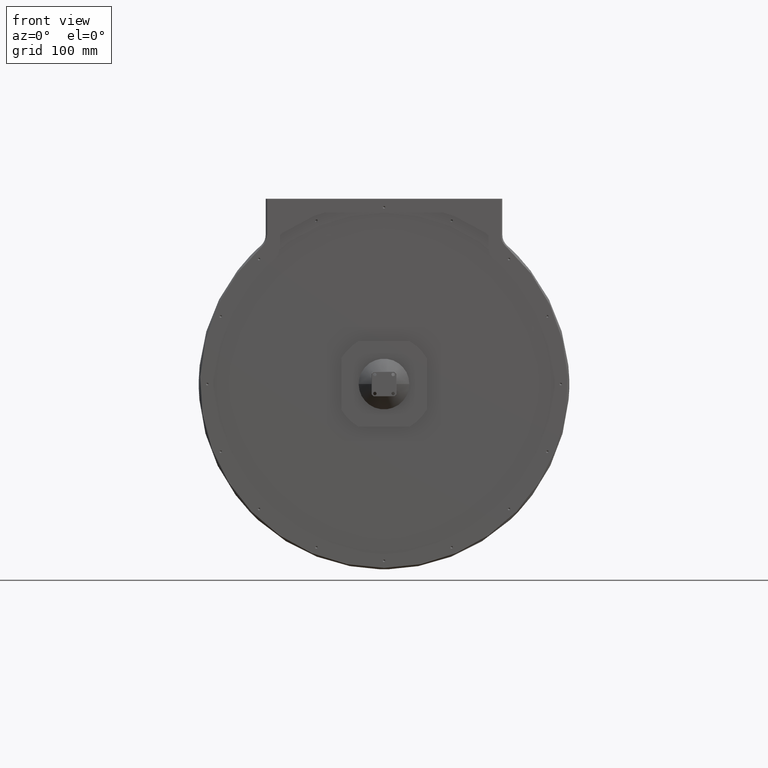
[diagram: clean part render]
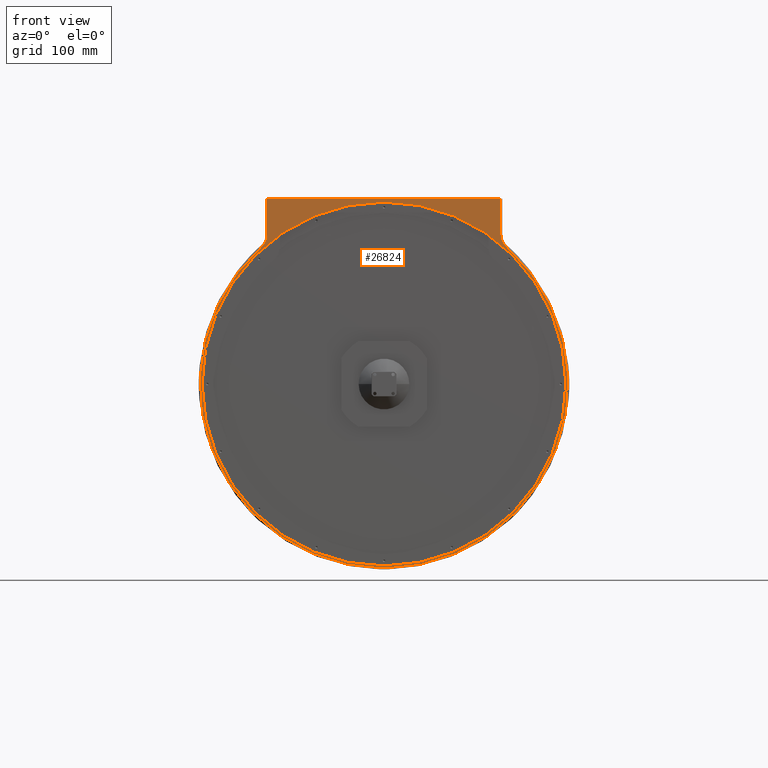
[diagram: same view with one face highlighted and labeled with its STEP entity id]
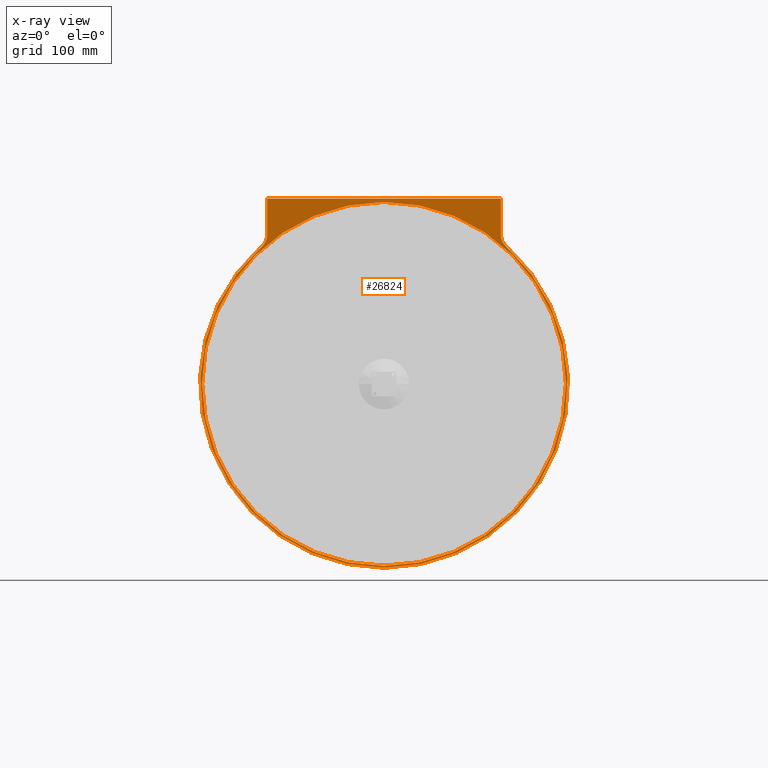
[diagram: x-ray of the same camera — body ghosted, the highlighted face saturated]
A machine part, front view. The second image highlights one B-rep face of the part: STEP entity #26824.
The next image is the same camera in x-ray: the body ghosted, the highlighted face saturated — about 0% of this face is hidden behind the body in this view.
In plain terms, the highlighted planar face has unit normal (0, -1, 0).
Its self-contained STEP definition (entity closure, byte-faithful):
#601 = CARTESIAN_POINT ( 'NONE',  ( -118.1099999999999852, -177.8000000000000114, 132.9017227126871887 ) ) ;
#1288 = CARTESIAN_POINT ( 'NONE',  ( 5.192187599100379972E-15, -177.8000000000000114, 0.000000000000000000 ) ) ;
#2264 = ORIENTED_EDGE ( 'NONE', *, *, #42083, .F. ) ;
#2590 = DIRECTION ( 'NONE',  ( 0.000000000000000000, -1.000000000000000000, 0.000000000000000000 ) ) ;
#3241 = AXIS2_PLACEMENT_3D ( 'NONE', #42191, #45985, #3373 ) ;
#3373 = DIRECTION ( 'NONE',  ( 0.000000000000000000, 0.000000000000000000, 1.000000000000000000 ) ) ;
#3731 = VERTEX_POINT ( 'NONE', #18475 ) ;
#4713 = CIRCLE ( 'NONE', #19298, 13.96999999999995445 ) ;
#5862 = ORIENTED_EDGE ( 'NONE', *, *, #48156, .T. ) ;
#6476 = CIRCLE ( 'NONE', #3241, 162.1154999999999973 ) ;
#8186 = DIRECTION ( 'NONE',  ( 0.000000000000000000, 0.000000000000000000, 1.000000000000000000 ) ) ;
#8200 = ORIENTED_EDGE ( 'NONE', *, *, #13082, .T. ) ;
#8260 = DIRECTION ( 'NONE',  ( 0.000000000000000000, 0.000000000000000000, 1.000000000000000000 ) ) ;
#8697 = LINE ( 'NONE', #43710, #32559 ) ;
#8707 = AXIS2_PLACEMENT_3D ( 'NONE', #19443, #12086, #27572 ) ;
#9702 = CARTESIAN_POINT ( 'NONE',  ( -104.1400000000000432, -177.8000000000000114, 0.000000000000000000 ) ) ;
#11271 = CARTESIAN_POINT ( 'NONE',  ( 104.1400000000000148, -177.8000000000000114, 132.9017227126871887 ) ) ;
#11446 = EDGE_CURVE ( 'NONE', #48333, #3731, #4713, .T. ) ;
#11605 = FACE_BOUND ( 'NONE', #14800, .T. ) ;
#11967 = EDGE_CURVE ( 'NONE', #27657, #48333, #22360, .T. ) ;
#12086 = DIRECTION ( 'NONE',  ( 0.000000000000000000, -1.000000000000000000, 0.000000000000000000 ) ) ;
#12777 = CARTESIAN_POINT ( 'NONE',  ( 5.192187599100379972E-15, -177.8000000000000114, -162.1154999999999973 ) ) ;
#13082 = EDGE_CURVE ( 'NONE', #3731, #49598, #40475, .T. ) ;
#13093 = DIRECTION ( 'NONE',  ( -0.000000000000000000, 1.000000000000000000, -0.000000000000000000 ) ) ;
#13502 = DIRECTION ( 'NONE',  ( 0.000000000000000000, 0.000000000000000000, -1.000000000000000000 ) ) ;
#13603 = ORIENTED_EDGE ( 'NONE', *, *, #11967, .T. ) ;
#13939 = LINE ( 'NONE', #40793, #33861 ) ;
#14800 = EDGE_LOOP ( 'NONE', ( #2264, #45728 ) ) ;
#15549 = CARTESIAN_POINT ( 'NONE',  ( -1.466123521761689464E-14, -177.8000000000000114, 162.1154999999999973 ) ) ;
#16587 = CARTESIAN_POINT ( 'NONE',  ( 5.192187599100379972E-15, -177.8000000000000114, -163.8300000000000409 ) ) ;
#18475 = CARTESIAN_POINT ( 'NONE',  ( -108.8299285714285816, -177.8000000000000114, 122.4594444995475016 ) ) ;
#18600 = ORIENTED_EDGE ( 'NONE', *, *, #47149, .T. ) ;
#19113 = CARTESIAN_POINT ( 'NONE',  ( 5.192187599100379972E-15, -177.8000000000000114, 0.000000000000000000 ) ) ;
#19298 = AXIS2_PLACEMENT_3D ( 'NONE', #601, #23725, #39189 ) ;
#19443 = CARTESIAN_POINT ( 'NONE',  ( 5.192187599100379972E-15, -177.8000000000000114, 0.000000000000000000 ) ) ;
#19473 = CIRCLE ( 'NONE', #49457, 162.1154999999999973 ) ;
#19534 = VERTEX_POINT ( 'NONE', #11271 ) ;
#19566 = CARTESIAN_POINT ( 'NONE',  ( -104.1400000000000148, -177.8000000000000114, 132.9017227126871887 ) ) ;
#22360 = LINE ( 'NONE', #9702, #30693 ) ;
#23725 = DIRECTION ( 'NONE',  ( -0.000000000000000000, 1.000000000000000000, -0.000000000000000000 ) ) ;
#24060 = EDGE_LOOP ( 'NONE', ( #34700, #13603, #29603, #8200, #18600, #5862, #35492 ) ) ;
#24260 = FACE_OUTER_BOUND ( 'NONE', #24060, .T. ) ;
#24506 = CARTESIAN_POINT ( 'NONE',  ( 118.1099999999999852, -177.8000000000000114, 132.9017227126871887 ) ) ;
#25346 = DIRECTION ( 'NONE',  ( 0.000000000000000000, 0.000000000000000000, 1.000000000000000000 ) ) ;
#26286 = VERTEX_POINT ( 'NONE', #15549 ) ;
#26824 = ADVANCED_FACE ( 'NONE', ( #24260, #11605 ), #46807, .T. ) ;
#27172 = VERTEX_POINT ( 'NONE', #12777 ) ;
#27475 = DIRECTION ( 'NONE',  ( 0.000000000000000000, -1.000000000000000000, 0.000000000000000000 ) ) ;
#27572 = DIRECTION ( 'NONE',  ( 0.000000000000000000, 0.000000000000000000, 1.000000000000000000 ) ) ;
#27618 = EDGE_CURVE ( 'NONE', #19534, #48545, #13939, .T. ) ;
#27657 = VERTEX_POINT ( 'NONE', #33955 ) ;
#28001 = DIRECTION ( 'NONE',  ( -1.000000000000000000, 0.000000000000000000, -1.316553249958681016E-16 ) ) ;
#29603 = ORIENTED_EDGE ( 'NONE', *, *, #11446, .T. ) ;
#30693 = VECTOR ( 'NONE', #13502, 1000.000000000000000 ) ;
#30809 = DIRECTION ( 'NONE',  ( 0.000000000000000000, 0.000000000000000000, 1.000000000000000000 ) ) ;
#32043 = AXIS2_PLACEMENT_3D ( 'NONE', #1288, #27475, #8186 ) ;
#32559 = VECTOR ( 'NONE', #28001, 1000.000000000000000 ) ;
#32893 = EDGE_CURVE ( 'NONE', #48545, #27657, #8697, .T. ) ;
#33861 = VECTOR ( 'NONE', #25346, 1000.000000000000000 ) ;
#33955 = CARTESIAN_POINT ( 'NONE',  ( -104.1400000000000432, -177.8000000000000114, 165.0999999999999659 ) ) ;
#34610 = DIRECTION ( 'NONE',  ( 0.000000000000000000, -1.000000000000000000, 0.000000000000000000 ) ) ;
#34700 = ORIENTED_EDGE ( 'NONE', *, *, #32893, .T. ) ;
#35492 = ORIENTED_EDGE ( 'NONE', *, *, #27618, .T. ) ;
#37797 = CARTESIAN_POINT ( 'NONE',  ( 104.1400000000000432, -177.8000000000000114, 165.0999999999999659 ) ) ;
#39189 = DIRECTION ( 'NONE',  ( 0.000000000000000000, 0.000000000000000000, 1.000000000000000000 ) ) ;
#39798 = EDGE_CURVE ( 'NONE', #26286, #27172, #6476, .T. ) ;
#39982 = AXIS2_PLACEMENT_3D ( 'NONE', #24506, #13093, #8260 ) ;
#40475 = CIRCLE ( 'NONE', #46944, 163.8300000000000409 ) ;
#40793 = CARTESIAN_POINT ( 'NONE',  ( 104.1400000000000432, -177.8000000000000114, 0.000000000000000000 ) ) ;
#42083 = EDGE_CURVE ( 'NONE', #27172, #26286, #19473, .T. ) ;
#42191 = CARTESIAN_POINT ( 'NONE',  ( 5.192187599100379972E-15, -177.8000000000000114, 0.000000000000000000 ) ) ;
#42398 = DIRECTION ( 'NONE',  ( 0.000000000000000000, 0.000000000000000000, 1.000000000000000000 ) ) ;
#43366 = CIRCLE ( 'NONE', #32043, 163.8300000000000409 ) ;
#43710 = CARTESIAN_POINT ( 'NONE',  ( -1.654410655771743765E-14, -177.8000000000000114, 165.0999999999999659 ) ) ;
#44404 = VERTEX_POINT ( 'NONE', #49337 ) ;
#45728 = ORIENTED_EDGE ( 'NONE', *, *, #39798, .F. ) ;
#45985 = DIRECTION ( 'NONE',  ( 0.000000000000000000, -1.000000000000000000, 0.000000000000000000 ) ) ;
#46214 = CARTESIAN_POINT ( 'NONE',  ( 5.192187599100379972E-15, -177.8000000000000114, 0.000000000000000000 ) ) ;
#46807 = PLANE ( 'NONE',  #8707 ) ;
#46944 = AXIS2_PLACEMENT_3D ( 'NONE', #19113, #34610, #30809 ) ;
#47149 = EDGE_CURVE ( 'NONE', #49598, #44404, #43366, .T. ) ;
#48156 = EDGE_CURVE ( 'NONE', #44404, #19534, #48890, .T. ) ;
#48333 = VERTEX_POINT ( 'NONE', #19566 ) ;
#48545 = VERTEX_POINT ( 'NONE', #37797 ) ;
#48890 = CIRCLE ( 'NONE', #39982, 13.96999999999998288 ) ;
#49337 = CARTESIAN_POINT ( 'NONE',  ( 108.8299285714285674, -177.8000000000000114, 122.4594444995475016 ) ) ;
#49457 = AXIS2_PLACEMENT_3D ( 'NONE', #46214, #2590, #42398 ) ;
#49598 = VERTEX_POINT ( 'NONE', #16587 ) ;